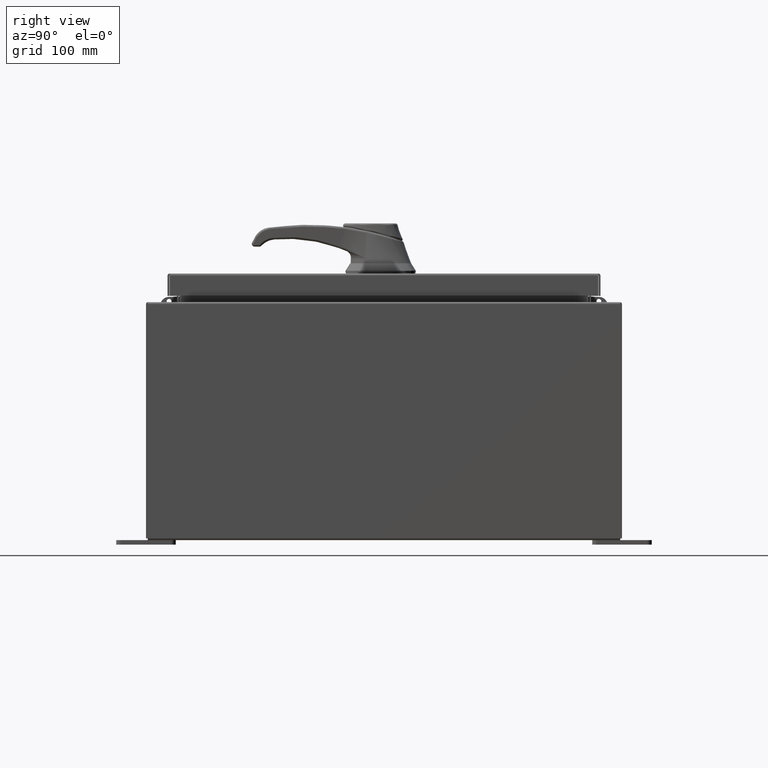
[diagram: clean part render]
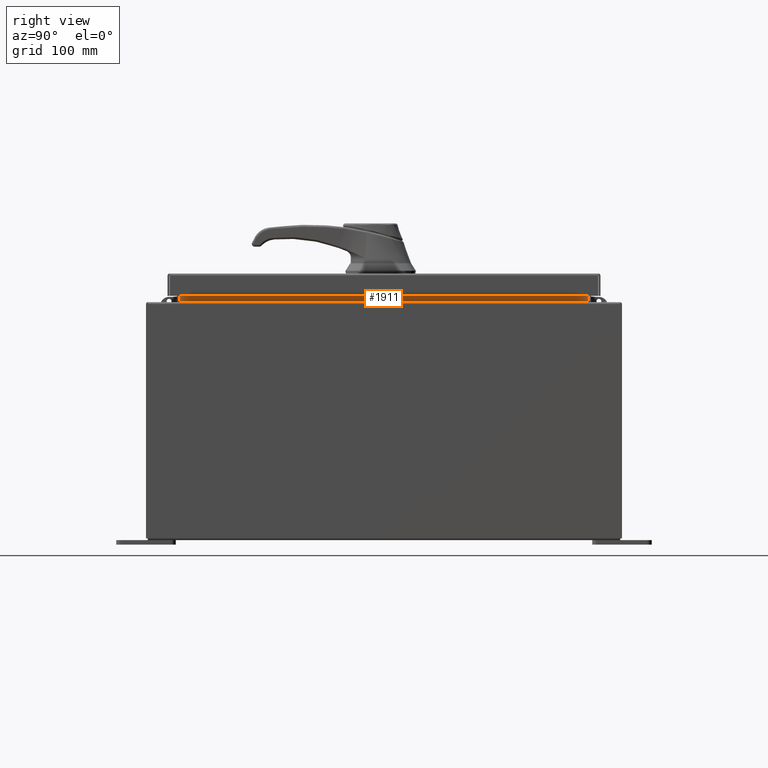
[diagram: same view with one face highlighted and labeled with its STEP entity id]
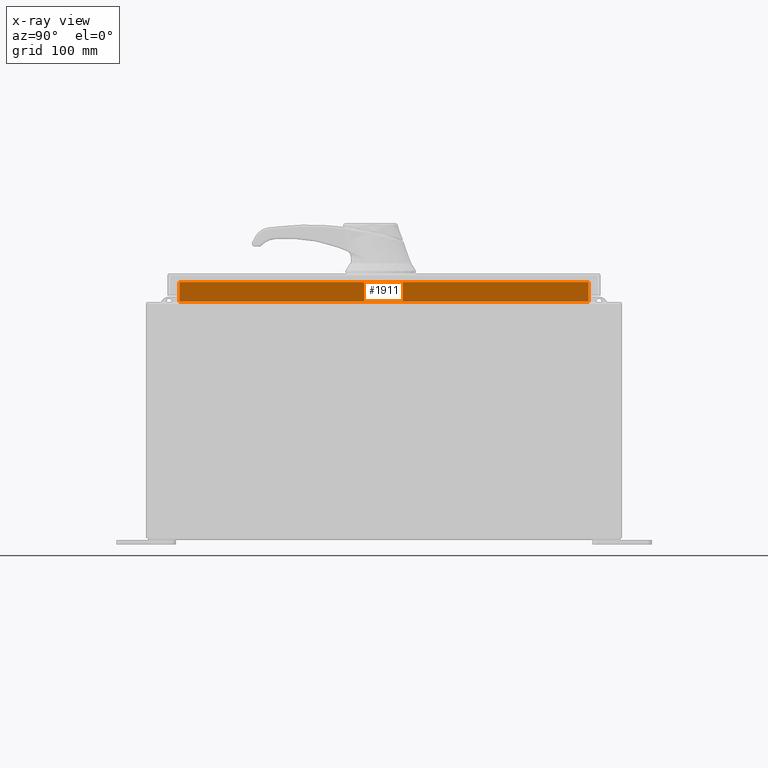
[diagram: x-ray of the same camera — body ghosted, the highlighted face saturated]
A machine part, right view. The second image highlights one B-rep face of the part: STEP entity #1911.
The next image is the same camera in x-ray: the body ghosted, the highlighted face saturated — about 0% of this face is hidden behind the body in this view.
In plain terms, the highlighted planar face has unit normal (1, 0, -0).
Its self-contained STEP definition (entity closure, byte-faithful):
#952 = EDGE_LOOP ( 'NONE', ( #63086, #85607, #102174, #77420 ) ) ;
#1846 = LINE ( 'NONE', #100575, #21726 ) ;
#1911 = ADVANCED_FACE ( 'NONE', ( #95455 ), #104253, .T. ) ;
#7483 = VERTEX_POINT ( 'NONE', #93441 ) ;
#7895 = LINE ( 'NONE', #66743, #33047 ) ;
#7996 = DIRECTION ( 'NONE',  ( 5.086204264567646800E-016, -1.000000000000000000, 3.814653198425735100E-016 ) ) ;
#11329 = DIRECTION ( 'NONE',  ( 3.542869979895298400E-015, -0.0000000000000000000, 1.000000000000000000 ) ) ;
#15018 = CARTESIAN_POINT ( 'NONE',  ( 6.699700000000042600, -8.593750000000003600, 10.76290000000000700 ) ) ;
#16227 = EDGE_CURVE ( 'NONE', #88858, #102528, #39943, .T. ) ;
#16251 = DIRECTION ( 'NONE',  ( 0.0000000000000000000, 1.000000000000000000, 0.0000000000000000000 ) ) ;
#21005 = EDGE_CURVE ( 'NONE', #7483, #88858, #1846, .T. ) ;
#21726 = VECTOR ( 'NONE', #7996, 39.37007874015748100 ) ;
#22466 = LINE ( 'NONE', #73717, #89694 ) ;
#22814 = CARTESIAN_POINT ( 'NONE',  ( 6.699700000000036400, -8.593750000000005300, 9.938300000000008800 ) ) ;
#23276 = DIRECTION ( 'NONE',  ( -3.542869979895289700E-015, -0.0000000000000000000, -1.000000000000000000 ) ) ;
#33047 = VECTOR ( 'NONE', #16251, 39.37007874015748100 ) ;
#39943 = LINE ( 'NONE', #95777, #76815 ) ;
#42520 = AXIS2_PLACEMENT_3D ( 'NONE', #88737, #93318, #47576 ) ;
#47287 = VERTEX_POINT ( 'NONE', #101983 ) ;
#47576 = DIRECTION ( 'NONE',  ( -3.542869979895289700E-015, 0.0000000000000000000, -1.000000000000000000 ) ) ;
#63086 = ORIENTED_EDGE ( 'NONE', *, *, #85563, .F. ) ;
#66743 = CARTESIAN_POINT ( 'NONE',  ( 6.699700000000040800, -8.593750000000003600, 10.76290000000000700 ) ) ;
#73717 = CARTESIAN_POINT ( 'NONE',  ( 6.699700000000036400, 8.593749999999994700, 9.925300000000007100 ) ) ;
#76815 = VECTOR ( 'NONE', #11329, 39.37007874015748100 ) ;
#77420 = ORIENTED_EDGE ( 'NONE', *, *, #21005, .F. ) ;
#85563 = EDGE_CURVE ( 'NONE', #47287, #7483, #22466, .T. ) ;
#85607 = ORIENTED_EDGE ( 'NONE', *, *, #101940, .F. ) ;
#88737 = CARTESIAN_POINT ( 'NONE',  ( 6.699700000000002700, 8.519010677830938800E-016, -2.373616600430448300E-014 ) ) ;
#88858 = VERTEX_POINT ( 'NONE', #22814 ) ;
#89694 = VECTOR ( 'NONE', #23276, 39.37007874015748100 ) ;
#93318 = DIRECTION ( 'NONE',  ( 1.000000000000000000, 1.271551066141907300E-016, -3.542869979895289700E-015 ) ) ;
#93441 = CARTESIAN_POINT ( 'NONE',  ( 6.699700000000036400, 8.593749999999994700, 9.938300000000008800 ) ) ;
#95455 = FACE_OUTER_BOUND ( 'NONE', #952, .T. ) ;
#95777 = CARTESIAN_POINT ( 'NONE',  ( 6.699700000000042600, -8.593750000000003600, 10.85060000000001100 ) ) ;
#100575 = CARTESIAN_POINT ( 'NONE',  ( 6.699700000000035500, 8.593749999999994700, 9.938300000000007000 ) ) ;
#101940 = EDGE_CURVE ( 'NONE', #102528, #47287, #7895, .T. ) ;
#101983 = CARTESIAN_POINT ( 'NONE',  ( 6.699700000000040800, 8.593749999999994700, 10.76290000000000700 ) ) ;
#102174 = ORIENTED_EDGE ( 'NONE', *, *, #16227, .F. ) ;
#102528 = VERTEX_POINT ( 'NONE', #15018 ) ;
#104253 = PLANE ( 'NONE',  #42520 ) ;